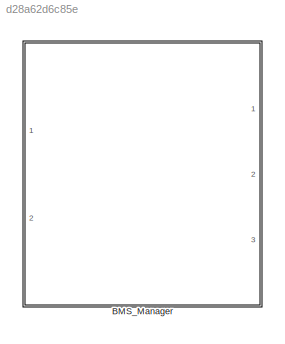
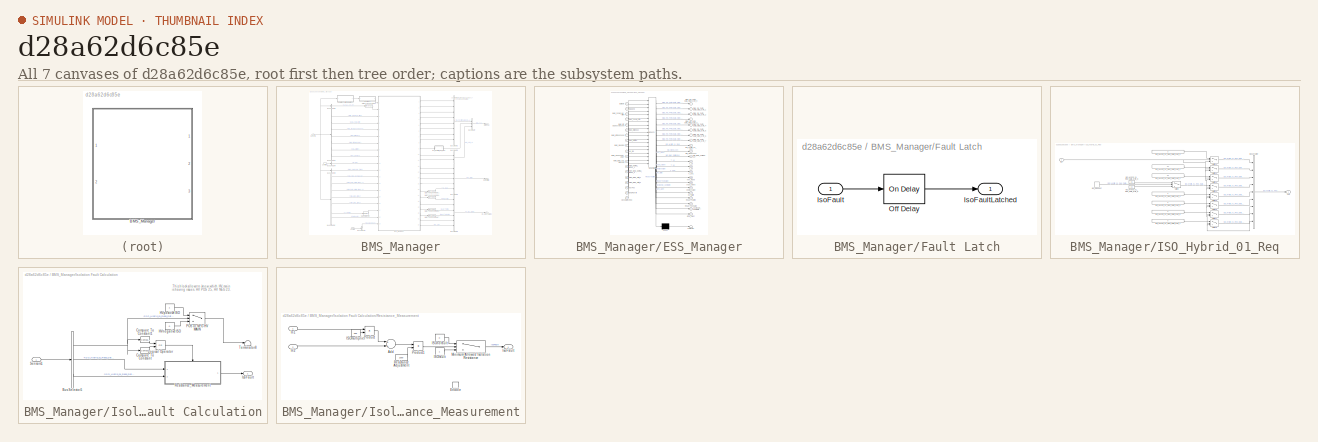
[diagram: thumbnail index - all 7 canvases of the model, root first then tree order]
MODEL slx_d28a62d6c85e
KIND library
CONFIG AbsTol = auto
CONFIG EnableMultiTasking = off
CONFIG FixedStep = auto
CONFIG MaxStep = auto
CONFIG MinStep = auto
CONFIG RelTol = 1e-3
CONFIG SampleTimeConstraint = Unconstrained
CONFIG Solver = VariableStepAuto
CONFIG SolverName = VariableStepAuto
CONFIG StartTime = 0.0
CONFIG StopTime = 10.0
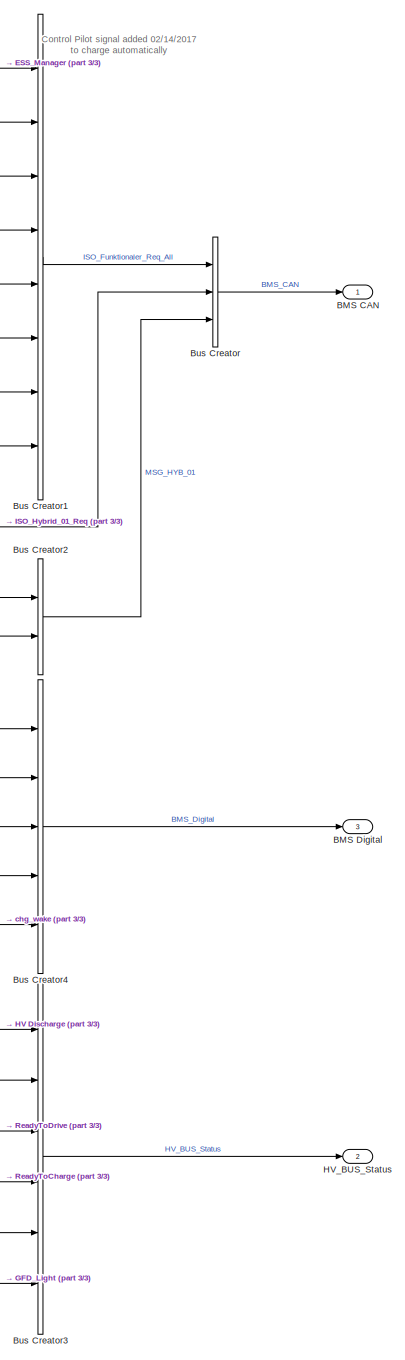
[diagram: BMS_Manager - part 1/3, right side, full height]
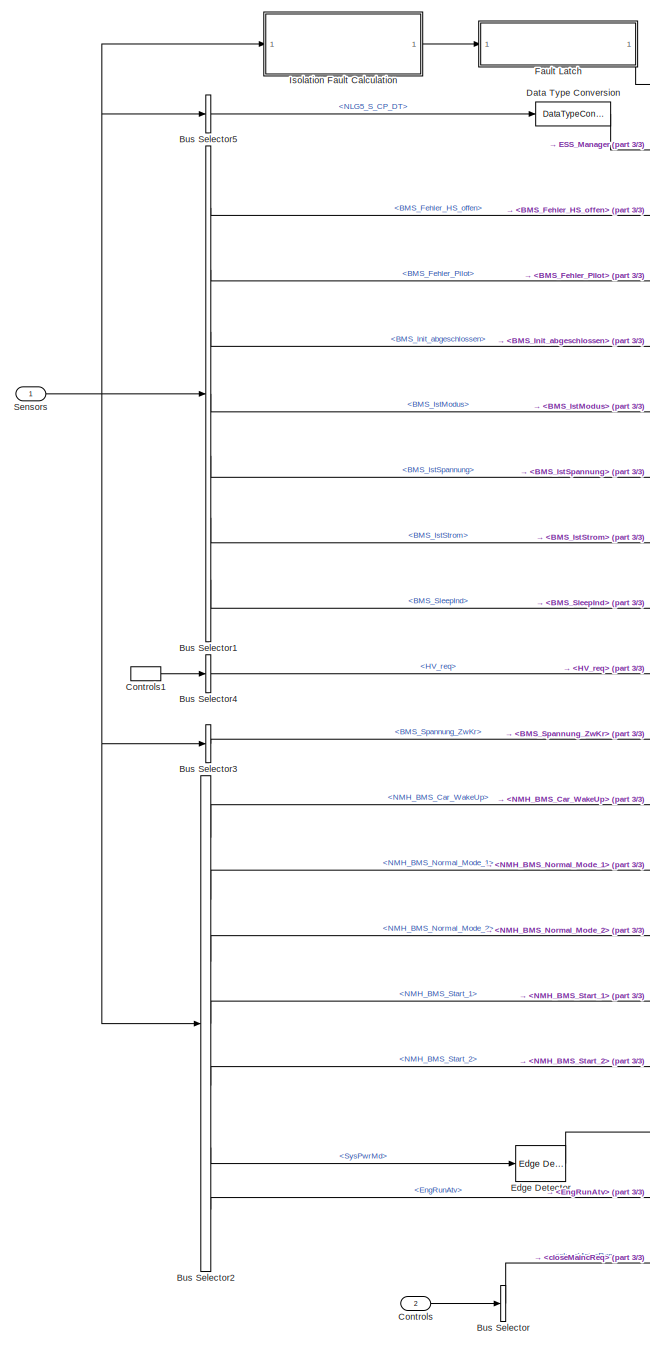
[diagram: BMS_Manager - part 2/3, left side, full height]
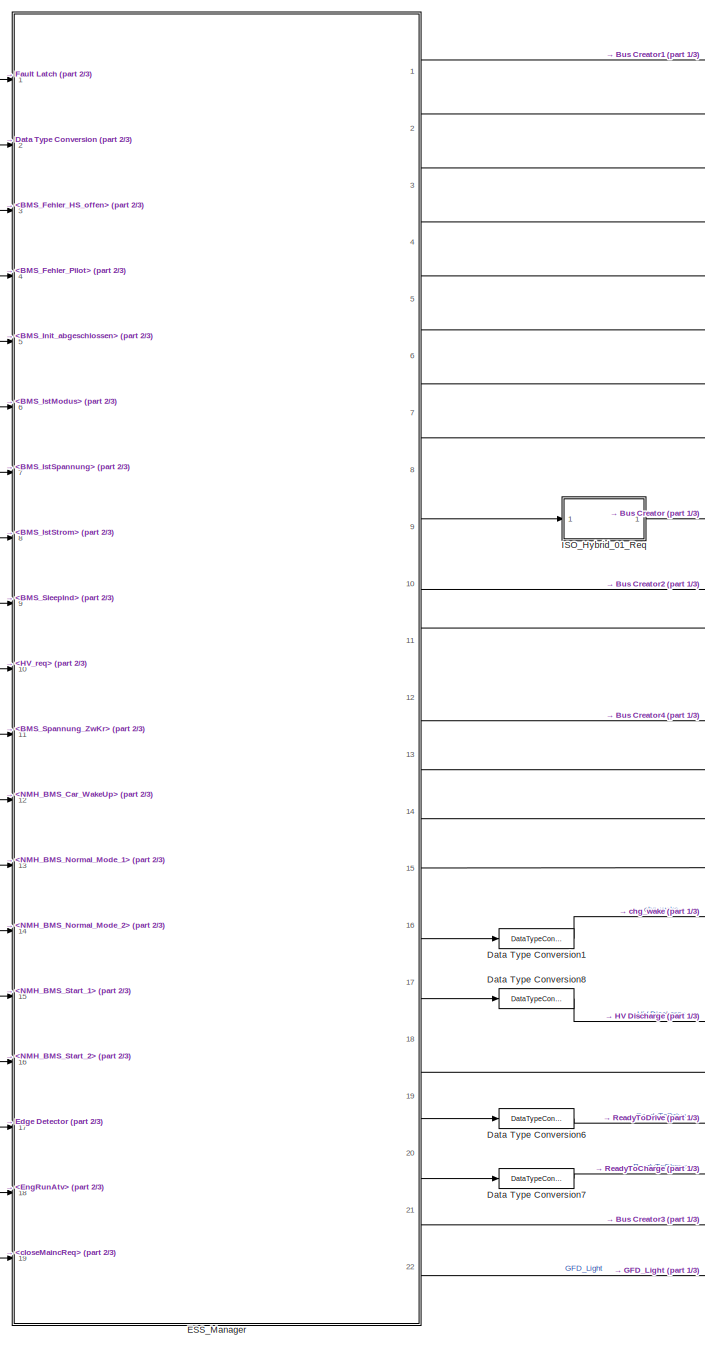
[diagram: BMS_Manager - part 3/3, center side, full height]
BLOCK [SubSystem] BMS_Manager
  Ports = [2, 3]
  RequestExecContextInheritance = off
  Variant = off
BLOCK [Outport] BMS_Manager/BMS CAN
  IconDisplay = Port number
BLOCK [Outport] BMS_Manager/BMS Digital
  IconDisplay = Port number
  Port = 3
BLOCK [BusCreator] BMS_Manager/Bus Creator
  DisplayOption = bar
  InheritFromInputs = on
  Inputs = 3
  Ports = [3, 1]
BLOCK [BusCreator] BMS_Manager/Bus Creator1
  DisplayOption = bar
  InheritFromInputs = on
  Inputs = 8
  Ports = [8, 1]
BLOCK [BusCreator] BMS_Manager/Bus Creator2
  DisplayOption = bar
  InheritFromInputs = on
  Inputs = 2
  Ports = [2, 1]
BLOCK [BusCreator] BMS_Manager/Bus Creator3
  DisplayOption = bar
  InheritFromInputs = on
  Inputs = 6
  Ports = [6, 1]
BLOCK [BusCreator] BMS_Manager/Bus Creator4
  DisplayOption = bar
  InheritFromInputs = on
  Inputs = 5
  Ports = [5, 1]
BLOCK [BusSelector] BMS_Manager/Bus Selector
  OutputAsBus = off
  OutputSignals = closeMaincReq
  Ports = [1, 1]
BLOCK [BusSelector] BMS_Manager/Bus Selector1
  OutputAsBus = off
  OutputSignals = from_CAN.fromHV_CAN.from_BMSHybrid.BMS_HYB_02.BMS_Fehler_HS_offen,from_CAN.fromHV_CAN.from_BMSHybrid.BMS_HYB_02.BMS_Fehler_Pilot,from_CAN.fromHV_CAN.from_BMSHybrid.BMS_HYB_02.BMS_Init_abgeschlossen,from_CAN.fromHV_CAN.from_BMSHybrid.BMS_HYB_02.BMS_IstModus,from_CAN.fromHV_CAN.from_BMSHybrid.BMS_HYB_02.BMS_IstSpannung,from_CAN.fromHV_CAN.from_BMSHybrid.BMS_HYB_02.BMS_IstStrom,from_CAN.fromHV_CAN.fr...<+36ch>
  Ports = [1, 7]
BLOCK [BusSelector] BMS_Manager/Bus Selector2
  OutputAsBus = off
  OutputSignals = from_CAN.fromEBCAN.from_BMSAntrieb.NMH_BMS.NMH_BMS_Car_WakeUp,from_CAN.fromEBCAN.from_BMSAntrieb.NMH_BMS.NMH_BMS_Normal_Mode_1,from_CAN.fromEBCAN.from_BMSAntrieb.NMH_BMS.NMH_BMS_Normal_Mode_2,from_CAN.fromEBCAN.from_BMSAntrieb.NMH_BMS.NMH_BMS_Start_1,from_CAN.fromEBCAN.from_BMSAntrieb.NMH_BMS.NMH_BMS_Start_2,from_CAN.fromVEH_CAN.from_BCM.SysPwrMd,from_CAN.fromEBCAN.from_ECM.EngRunAtv
  Ports = [1, 7]
BLOCK [BusSelector] BMS_Manager/Bus Selector3
  OutputAsBus = off
  OutputSignals = from_CAN.fromHV_CAN.from_BMSHybrid.BMS_Spannung_ZwKr
  Ports = [1, 1]
BLOCK [BusSelector] BMS_Manager/Bus Selector4
  OutputAsBus = off
  OutputSignals = HV_req
  Ports = [1, 1]
BLOCK [BusSelector] BMS_Manager/Bus Selector5
  OutputAsBus = off
  OutputSignals = from_CAN.fromHV_CAN.from_OBC.NLG5_ST.NLG5_S_CP_DT
  Ports = [1, 1]
BLOCK [Inport] BMS_Manager/Controls
  IconDisplay = Port number
  Port = 2
BLOCK [InportShadow] BMS_Manager/Controls1
  IconDisplay = Port number
  Port = 2
BLOCK [DataTypeConversion] BMS_Manager/Data Type Conversion
  OutDataTypeStr = boolean
  RndMeth = Floor
  SaturateOnIntegerOverflow = off
BLOCK [DataTypeConversion] BMS_Manager/Data Type Conversion1
  OutDataTypeStr = boolean
  RndMeth = Floor
  SaturateOnIntegerOverflow = off
BLOCK [DataTypeConversion] BMS_Manager/Data Type Conversion6
  OutDataTypeStr = boolean
  RndMeth = Floor
  SaturateOnIntegerOverflow = off
BLOCK [DataTypeConversion] BMS_Manager/Data Type Conversion7
  OutDataTypeStr = boolean
  RndMeth = Floor
  SaturateOnIntegerOverflow = off
BLOCK [DataTypeConversion] BMS_Manager/Data Type Conversion8
  OutDataTypeStr = boolean
  RndMeth = Floor
  SaturateOnIntegerOverflow = off
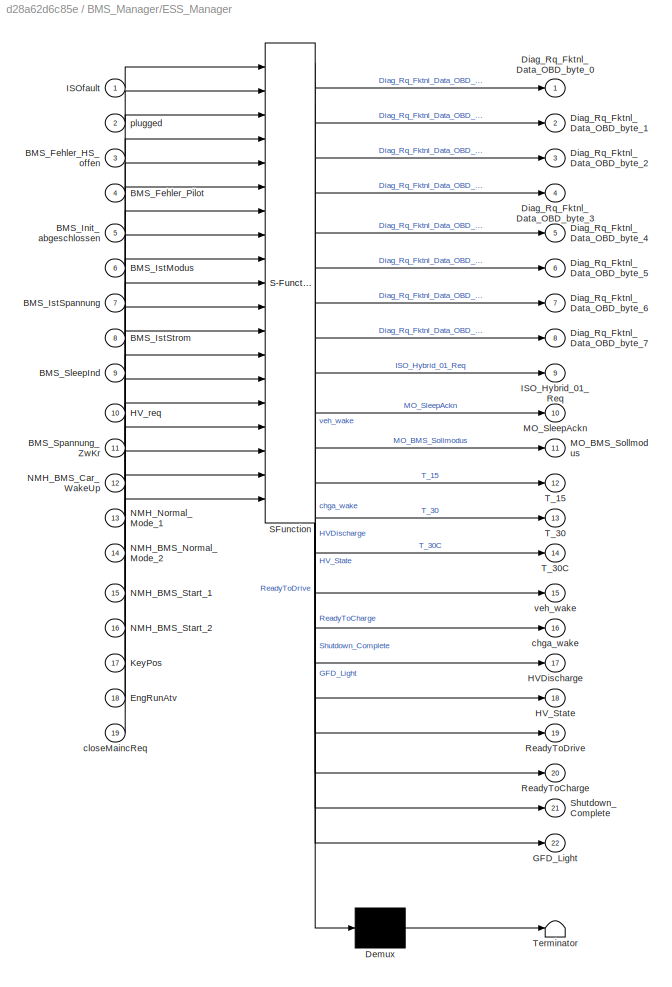
BLOCK [SubSystem] BMS_Manager/ESS_Manager
  ErrorFcn = Stateflow.Translate.translate
  PermitHierarchicalResolution = ExplicitOnly
  Ports = [19, 22]
  RequestExecContextInheritance = off
  SFBlockType = Chart
  ShowPortLabels = SignalName
  TreatAsAtomicUnit = on
  Variant = off
BLOCK [Demux] BMS_Manager/ESS_Manager/ Demux 
  Outputs = 1
  Ports = [1, 1]
BLOCK [S-Function] BMS_Manager/ESS_Manager/ SFunction 
  EnableBusSupport = off
  FunctionName = sf_sfun
  PortCounts = [19 23]
  Ports = [19, 23]
  SFcnIsStateOwnerBlock = off
  SFunctionDeploymentMode = off
  Tag = Stateflow S-Function lib_BMSManager 36
BLOCK [Terminator] BMS_Manager/ESS_Manager/ Terminator 
BLOCK [Inport] BMS_Manager/ESS_Manager/BMS_Fehler_HS_offen
  IconDisplay = Port number
  Port = 3
BLOCK [Inport] BMS_Manager/ESS_Manager/BMS_Fehler_Pilot
  IconDisplay = Port number
  Port = 4
BLOCK [Inport] BMS_Manager/ESS_Manager/BMS_Init_abgeschlossen
  IconDisplay = Port number
  Port = 5
BLOCK [Inport] BMS_Manager/ESS_Manager/BMS_IstModus
  IconDisplay = Port number
  Port = 6
BLOCK [Inport] BMS_Manager/ESS_Manager/BMS_IstSpannung
  IconDisplay = Port number
  Port = 7
BLOCK [Inport] BMS_Manager/ESS_Manager/BMS_IstStrom
  IconDisplay = Port number
  Port = 8
BLOCK [Inport] BMS_Manager/ESS_Manager/BMS_SleepInd
  IconDisplay = Port number
  Port = 9
BLOCK [Inport] BMS_Manager/ESS_Manager/BMS_Spannung_ZwKr
  IconDisplay = Port number
  Port = 11
BLOCK [Outport] BMS_Manager/ESS_Manager/Diag_Rq_Fktnl_Data_OBD_byte_0
  IconDisplay = Port number
BLOCK [Outport] BMS_Manager/ESS_Manager/Diag_Rq_Fktnl_Data_OBD_byte_1
  IconDisplay = Port number
  Port = 2
BLOCK [Outport] BMS_Manager/ESS_Manager/Diag_Rq_Fktnl_Data_OBD_byte_2
  IconDisplay = Port number
  Port = 3
BLOCK [Outport] BMS_Manager/ESS_Manager/Diag_Rq_Fktnl_Data_OBD_byte_3
  IconDisplay = Port number
  Port = 4
BLOCK [Outport] BMS_Manager/ESS_Manager/Diag_Rq_Fktnl_Data_OBD_byte_4
  IconDisplay = Port number
  Port = 5
BLOCK [Outport] BMS_Manager/ESS_Manager/Diag_Rq_Fktnl_Data_OBD_byte_5
  IconDisplay = Port number
  Port = 6
BLOCK [Outport] BMS_Manager/ESS_Manager/Diag_Rq_Fktnl_Data_OBD_byte_6
  IconDisplay = Port number
  Port = 7
BLOCK [Outport] BMS_Manager/ESS_Manager/Diag_Rq_Fktnl_Data_OBD_byte_7
  IconDisplay = Port number
  Port = 8
BLOCK [Inport] BMS_Manager/ESS_Manager/EngRunAtv
  IconDisplay = Port number
  Port = 18
BLOCK [Outport] BMS_Manager/ESS_Manager/GFD_Light
  IconDisplay = Port number
  Port = 22
BLOCK [Outport] BMS_Manager/ESS_Manager/HVDischarge
  IconDisplay = Port number
  Port = 17
BLOCK [Outport] BMS_Manager/ESS_Manager/HV_State
  IconDisplay = Port number
  Port = 18
BLOCK [Inport] BMS_Manager/ESS_Manager/HV_req
  IconDisplay = Port number
  Port = 10
BLOCK [Outport] BMS_Manager/ESS_Manager/ISO_Hybrid_01_Req
  IconDisplay = Port number
  Port = 9
BLOCK [Inport] BMS_Manager/ESS_Manager/ISOfault
  IconDisplay = Port number
BLOCK [Inport] BMS_Manager/ESS_Manager/KeyPos
  IconDisplay = Port number
  Port = 17
BLOCK [Outport] BMS_Manager/ESS_Manager/MO_BMS_Sollmodus
  IconDisplay = Port number
  Port = 11
BLOCK [Outport] BMS_Manager/ESS_Manager/MO_SleepAckn
  IconDisplay = Port number
  Port = 10
BLOCK [Inport] BMS_Manager/ESS_Manager/NMH_BMS_Car_WakeUp
  IconDisplay = Port number
  Port = 12
BLOCK [Inport] BMS_Manager/ESS_Manager/NMH_BMS_Normal_Mode_2
  IconDisplay = Port number
  Port = 14
BLOCK [Inport] BMS_Manager/ESS_Manager/NMH_BMS_Start_1
  IconDisplay = Port number
  Port = 15
BLOCK [Inport] BMS_Manager/ESS_Manager/NMH_BMS_Start_2
  IconDisplay = Port number
  Port = 16
BLOCK [Inport] BMS_Manager/ESS_Manager/NMH_Normal_Mode_1
  IconDisplay = Port number
  Port = 13
BLOCK [Outport] BMS_Manager/ESS_Manager/ReadyToCharge
  IconDisplay = Port number
  Port = 20
BLOCK [Outport] BMS_Manager/ESS_Manager/ReadyToDrive
  IconDisplay = Port number
  Port = 19
BLOCK [Outport] BMS_Manager/ESS_Manager/Shutdown_Complete
  IconDisplay = Port number
  Port = 21
BLOCK [Outport] BMS_Manager/ESS_Manager/T_15
  IconDisplay = Port number
  Port = 12
BLOCK [Outport] BMS_Manager/ESS_Manager/T_30
  IconDisplay = Port number
  Port = 13
BLOCK [Outport] BMS_Manager/ESS_Manager/T_30C
  IconDisplay = Port number
  Port = 14
BLOCK [Outport] BMS_Manager/ESS_Manager/chga_wake
  IconDisplay = Port number
  Port = 16
BLOCK [Inport] BMS_Manager/ESS_Manager/closeMaincReq
  IconDisplay = Port number
  Port = 19
BLOCK [Inport] BMS_Manager/ESS_Manager/plugged
  IconDisplay = Port number
  Port = 2
BLOCK [Outport] BMS_Manager/ESS_Manager/veh_wake
  IconDisplay = Port number
  Port = 15
BLOCK [Reference] BMS_Manager/Edge Detector  REF=powerlib_meascontrol/Logic/Edge Detector
  Ports = [1, 1]
  SourceBlock = powerlib_meascontrol/Logic/Edge Detector
  SourceProductBaseCode = PS
  SourceProductName = Simscape Power Systems
  SourceType = Edge Detector
BLOCK [SubSystem] BMS_Manager/Fault Latch
  Ports = [1, 1]
  RequestExecContextInheritance = off
  Variant = off
BLOCK [Inport] BMS_Manager/Fault Latch/IsoFault
  IconDisplay = Port number
BLOCK [Outport] BMS_Manager/Fault Latch/IsoFaultLatched
  IconDisplay = Port number
BLOCK [Reference] BMS_Manager/Fault Latch/Off Delay  REF=powerlib_meascontrol/Logic/On Delay
  Ports = [1, 1]
  SourceBlock = powerlib_meascontrol/Logic/On Delay
  SourceProductBaseCode = PS
  SourceProductName = Simscape Power Systems
  SourceType = On/Off Delay
BLOCK [Outport] BMS_Manager/HV_BUS_Status
  IconDisplay = Port number
  Port = 2
BLOCK [SubSystem] BMS_Manager/ISO_Hybrid_01_Req
  Ports = [1, 1]
  RequestExecContextInheritance = off
  Variant = off
BLOCK [BusCreator] BMS_Manager/ISO_Hybrid_01_Req/Bus Creator
  DisplayOption = bar
  InheritFromInputs = on
  Inputs = 9
  Ports = [9, 1]
BLOCK [Constant] BMS_Manager/ISO_Hybrid_01_Req/ISO_Hybrid_01_Req_Data_byte_0
  Value = 3
BLOCK [Constant] BMS_Manager/ISO_Hybrid_01_Req/ISO_Hybrid_01_Req_Data_byte_1
  Value = 34
BLOCK [Constant] BMS_Manager/ISO_Hybrid_01_Req/ISO_Hybrid_01_Req_Data_byte_2
  Value = 30
BLOCK [Constant] BMS_Manager/ISO_Hybrid_01_Req/ISO_Hybrid_01_Req_Data_byte_3
  Value = 25
BLOCK [Constant] BMS_Manager/ISO_Hybrid_01_Req/ISO_Hybrid_01_Req_Data_byte_4
  Value = 0
BLOCK [Constant] BMS_Manager/ISO_Hybrid_01_Req/ISO_Hybrid_01_Req_Data_byte_5
  Value = 0
BLOCK [Constant] BMS_Manager/ISO_Hybrid_01_Req/ISO_Hybrid_01_Req_Data_byte_6
  Value = 0
BLOCK [Constant] BMS_Manager/ISO_Hybrid_01_Req/ISO_Hybrid_01_Req_Data_byte_7
  Value = 0
BLOCK [Constant] BMS_Manager/ISO_Hybrid_01_Req/ISO_Hybrid_01_Req_Data_byte_8
  Value = 23
BLOCK [DiscretePulseGenerator] BMS_Manager/ISO_Hybrid_01_Req/ISO_Request
  Period = 0.5
  Ports = [0, 1]
  PulseType = Time based
  PulseWidth = 50
  SampleTime = -1
BLOCK [Inport] BMS_Manager/ISO_Hybrid_01_Req/In1
  IconDisplay = Port number
BLOCK [Outport] BMS_Manager/ISO_Hybrid_01_Req/Out1
  IconDisplay = Port number
BLOCK [Switch] BMS_Manager/ISO_Hybrid_01_Req/Switch
  Criteria = u2 > Threshold
  InputSameDT = off
  SaturateOnIntegerOverflow = off
BLOCK [Switch] BMS_Manager/ISO_Hybrid_01_Req/Switch1
  Criteria = u2 > Threshold
  InputSameDT = off
  SaturateOnIntegerOverflow = off
BLOCK [Switch] BMS_Manager/ISO_Hybrid_01_Req/Switch2
  Criteria = u2 > Threshold
  InputSameDT = off
  SaturateOnIntegerOverflow = off
BLOCK [Switch] BMS_Manager/ISO_Hybrid_01_Req/Switch3
  Criteria = u2 > Threshold
  InputSameDT = off
  SaturateOnIntegerOverflow = off
BLOCK [Switch] BMS_Manager/ISO_Hybrid_01_Req/Switch4
  Criteria = u2 > Threshold
  InputSameDT = off
  SaturateOnIntegerOverflow = off
BLOCK [Switch] BMS_Manager/ISO_Hybrid_01_Req/Switch5
  Criteria = u2 > Threshold
  InputSameDT = off
  SaturateOnIntegerOverflow = off
BLOCK [Switch] BMS_Manager/ISO_Hybrid_01_Req/Switch6
  Criteria = u2 > Threshold
  InputSameDT = off
  SaturateOnIntegerOverflow = off
BLOCK [Switch] BMS_Manager/ISO_Hybrid_01_Req/Switch7
  Criteria = u2 > Threshold
  InputSameDT = off
  SaturateOnIntegerOverflow = off
BLOCK [Switch] BMS_Manager/ISO_Hybrid_01_Req/Switch8
  Criteria = u2 > Threshold
  InputSameDT = off
  SaturateOnIntegerOverflow = off
BLOCK [SubSystem] BMS_Manager/Isolation Fault Calculation
  Ports = [1, 1]
  RequestExecContextInheritance = off
  Variant = off
BLOCK [BusSelector] BMS_Manager/Isolation Fault Calculation/Bus Selector5
  OutputAsBus = off
  OutputSignals = from_CAN.fromEBCAN.from_BMSAntrieb.ISO_Hybrid_01_Resp_Data.ISO_Hybrid_01_Resp_Data_byte_3,from_CAN.fromEBCAN.from_BMSAntrieb.ISO_Hybrid_01_Resp_Data.ISO_Hybrid_01_Resp_Data_byte_4,from_CAN.fromEBCAN.from_BMSAntrieb.ISO_Hybrid_01_Resp_Data.ISO_Hybrid_01_Resp_Data_byte_5
  Ports = [1, 3]
BLOCK [Reference] BMS_Manager/Isolation Fault Calculation/Compare To Constant  REF=simulink/Logic and Bit
Operations/Compare
To Constant
  Ports = [1, 1]
  SourceBlock = simulink/Logic and Bit\nOperations/Compare\nTo Constant
  SourceProductBaseCode = SL
  SourceProductName = Simulink
  SourceType = Compare To Constant
BLOCK [Reference] BMS_Manager/Isolation Fault Calculation/Compare To Constant1  REF=simulink/Logic and Bit
Operations/Compare
To Constant
  Ports = [1, 1]
  SourceBlock = simulink/Logic and Bit\nOperations/Compare\nTo Constant
  SourceProductBaseCode = SL
  SourceProductName = Simulink
  SourceType = Compare To Constant
BLOCK [Constant] BMS_Manager/Isolation Fault Calculation/HVnegativeISO
  Value = 0
BLOCK [Constant] BMS_Manager/Isolation Fault Calculation/HVpositiveISO
BLOCK [Outport] BMS_Manager/Isolation Fault Calculation/IsoFault
  IconDisplay = Port number
BLOCK [Logic] BMS_Manager/Isolation Fault Calculation/Logical Operator
  AllPortsSameDT = off
  Operator = OR
  OutDataTypeStr = boolean
  Ports = [2, 1]
BLOCK [Switch] BMS_Manager/Isolation Fault Calculation/POS or NEG HV MAIN
  Criteria = u2 > Threshold
  InputSameDT = off
  SaturateOnIntegerOverflow = off
  Threshold = 24
BLOCK [SubSystem] BMS_Manager/Isolation Fault Calculation/Resistance_Measurement
  Ports = [2, 1, 1]
  RequestExecContextInheritance = off
  Variant = off
BLOCK [Sum] BMS_Manager/Isolation Fault Calculation/Resistance_Measurement/Add
  InputSameDT = off
  OutDataTypeStr = Inherit: Inherit via internal rule
  Ports = [2, 1]
  SaturateOnIntegerOverflow = off
BLOCK [EnablePort] BMS_Manager/Isolation Fault Calculation/Resistance_Measurement/Enable
  Ports = []
BLOCK [Constant] BMS_Manager/Isolation Fault Calculation/Resistance_Measurement/ISOfault
BLOCK [Constant] BMS_Manager/Isolation Fault Calculation/Resistance_Measurement/ISOmultiplier
  Value = 256
BLOCK [Constant] BMS_Manager/Isolation Fault Calculation/Resistance_Measurement/ISOnofault
  Value = 0
BLOCK [Inport] BMS_Manager/Isolation Fault Calculation/Resistance_Measurement/In1
  IconDisplay = Port number
BLOCK [Inport] BMS_Manager/Isolation Fault Calculation/Resistance_Measurement/In2
  IconDisplay = Port number
  Port = 2
BLOCK [Outport] BMS_Manager/Isolation Fault Calculation/Resistance_Measurement/IsoFault
  IconDisplay = Port number
BLOCK [Switch] BMS_Manager/Isolation Fault Calculation/Resistance_Measurement/Minimum Allowed Isolation Resistance
  Criteria = u2 > Threshold
  InputSameDT = off
  SaturateOnIntegerOverflow = off
  Threshold = 500000
BLOCK [Product] BMS_Manager/Isolation Fault Calculation/Resistance_Measurement/Product
  InputSameDT = off
  OutDataTypeStr = Inherit: Inherit via internal rule
  Ports = [2, 1]
  RndMeth = Floor
  SaturateOnIntegerOverflow = off
BLOCK [Product] BMS_Manager/Isolation Fault Calculation/Resistance_Measurement/Product1
  InputSameDT = off
  OutDataTypeStr = Inherit: Inherit via internal rule
  Ports = [2, 1]
  RndMeth = Floor
  SaturateOnIntegerOverflow = off
BLOCK [Constant] BMS_Manager/Isolation Fault Calculation/Resistance_Measurement/Resistance Adjustment
  Value = 1000
BLOCK [Inport] BMS_Manager/Isolation Fault Calculation/Sensors1
  IconDisplay = Port number
BLOCK [Terminator] BMS_Manager/Isolation Fault Calculation/Terminator8
BLOCK [Inport] BMS_Manager/Sensors
  IconDisplay = Port number
ANNOTATION BMS_Manager: Control Pilot signal added 02/14/2017 to charge automatically
ANNOTATION BMS_Manager/Isolation Fault Calculation: This block allows to know which HV main is having issues. HV POS 25, HV NEG 23.
LINE BMS_Manager/Bus Creator1:1 -> BMS_Manager/Bus Creator:1
LINE BMS_Manager/Bus Creator2:1 -> BMS_Manager/Bus Creator:3
LINE BMS_Manager/Bus Creator3:1 -> BMS_Manager/HV_BUS_Status:1
LINE BMS_Manager/Bus Creator4:1 -> BMS_Manager/BMS Digital:1
LINE BMS_Manager/Bus Creator:1 -> BMS_Manager/BMS CAN:1
LINE BMS_Manager/Bus Selector1:1 -> BMS_Manager/ESS_Manager:3
LINE BMS_Manager/Bus Selector1:2 -> BMS_Manager/ESS_Manager:4
LINE BMS_Manager/Bus Selector1:3 -> BMS_Manager/ESS_Manager:5
LINE BMS_Manager/Bus Selector1:4 -> BMS_Manager/ESS_Manager:6
LINE BMS_Manager/Bus Selector1:5 -> BMS_Manager/ESS_Manager:7
LINE BMS_Manager/Bus Selector1:6 -> BMS_Manager/ESS_Manager:8
LINE BMS_Manager/Bus Selector1:7 -> BMS_Manager/ESS_Manager:9
LINE BMS_Manager/Bus Selector2:1 -> BMS_Manager/ESS_Manager:12
LINE BMS_Manager/Bus Selector2:2 -> BMS_Manager/ESS_Manager:13
LINE BMS_Manager/Bus Selector2:3 -> BMS_Manager/ESS_Manager:14
LINE BMS_Manager/Bus Selector2:4 -> BMS_Manager/ESS_Manager:15
LINE BMS_Manager/Bus Selector2:5 -> BMS_Manager/ESS_Manager:16
LINE BMS_Manager/Bus Selector2:6 -> BMS_Manager/Edge Detector:1
LINE BMS_Manager/Bus Selector2:7 -> BMS_Manager/ESS_Manager:18
LINE BMS_Manager/Bus Selector3:1 -> BMS_Manager/ESS_Manager:11
LINE BMS_Manager/Bus Selector4:1 -> BMS_Manager/ESS_Manager:10
LINE BMS_Manager/Bus Selector5:1 -> BMS_Manager/Data Type Conversion:1
LINE BMS_Manager/Bus Selector:1 -> BMS_Manager/ESS_Manager:19
LINE BMS_Manager/Controls1:1 -> BMS_Manager/Bus Selector4:1
LINE BMS_Manager/Controls:1 -> BMS_Manager/Bus Selector:1
LINE BMS_Manager/Data Type Conversion1:1 -> BMS_Manager/Bus Creator4:5
LINE BMS_Manager/Data Type Conversion6:1 -> BMS_Manager/Bus Creator3:3
LINE BMS_Manager/Data Type Conversion7:1 -> BMS_Manager/Bus Creator3:4
LINE BMS_Manager/Data Type Conversion8:1 -> BMS_Manager/Bus Creator3:1
LINE BMS_Manager/Data Type Conversion:1 -> BMS_Manager/ESS_Manager:2
LINE BMS_Manager/ESS_Manager:1 -> BMS_Manager/Bus Creator1:1
LINE BMS_Manager/ESS_Manager:10 -> BMS_Manager/Bus Creator2:1
LINE BMS_Manager/ESS_Manager:11 -> BMS_Manager/Bus Creator2:2
LINE BMS_Manager/ESS_Manager:12 -> BMS_Manager/Bus Creator4:1
LINE BMS_Manager/ESS_Manager:13 -> BMS_Manager/Bus Creator4:2
LINE BMS_Manager/ESS_Manager:14 -> BMS_Manager/Bus Creator4:3
LINE BMS_Manager/ESS_Manager:15 -> BMS_Manager/Bus Creator4:4
LINE BMS_Manager/ESS_Manager:16 -> BMS_Manager/Data Type Conversion1:1
LINE BMS_Manager/ESS_Manager:17 -> BMS_Manager/Data Type Conversion8:1
LINE BMS_Manager/ESS_Manager:18 -> BMS_Manager/Bus Creator3:2
LINE BMS_Manager/ESS_Manager:19 -> BMS_Manager/Data Type Conversion6:1
LINE BMS_Manager/ESS_Manager:2 -> BMS_Manager/Bus Creator1:2
LINE BMS_Manager/ESS_Manager:20 -> BMS_Manager/Data Type Conversion7:1
LINE BMS_Manager/ESS_Manager:21 -> BMS_Manager/Bus Creator3:5
LINE BMS_Manager/ESS_Manager:22 -> BMS_Manager/Bus Creator3:6
LINE BMS_Manager/ESS_Manager:3 -> BMS_Manager/Bus Creator1:3
LINE BMS_Manager/ESS_Manager:4 -> BMS_Manager/Bus Creator1:4
LINE BMS_Manager/ESS_Manager:5 -> BMS_Manager/Bus Creator1:5
LINE BMS_Manager/ESS_Manager:6 -> BMS_Manager/Bus Creator1:6
LINE BMS_Manager/ESS_Manager:7 -> BMS_Manager/Bus Creator1:7
LINE BMS_Manager/ESS_Manager:8 -> BMS_Manager/Bus Creator1:8
LINE BMS_Manager/ESS_Manager:9 -> BMS_Manager/ISO_Hybrid_01_Req:1
LINE BMS_Manager/Edge Detector:1 -> BMS_Manager/ESS_Manager:17
LINE BMS_Manager/Fault Latch/IsoFault:1 -> BMS_Manager/Fault Latch/Off Delay:1
LINE BMS_Manager/Fault Latch/Off Delay:1 -> BMS_Manager/Fault Latch/IsoFaultLatched:1
LINE BMS_Manager/Fault Latch:1 -> BMS_Manager/ESS_Manager:1
LINE BMS_Manager/ISO_Hybrid_01_Req/Bus Creator:1 -> BMS_Manager/ISO_Hybrid_01_Req/Out1:1
LINE BMS_Manager/ISO_Hybrid_01_Req/ISO_Hybrid_01_Req_Data_byte_0:1 -> BMS_Manager/ISO_Hybrid_01_Req/Switch1:1
LINE BMS_Manager/ISO_Hybrid_01_Req/ISO_Hybrid_01_Req_Data_byte_1:1 -> BMS_Manager/ISO_Hybrid_01_Req/Switch2:1
LINE BMS_Manager/ISO_Hybrid_01_Req/ISO_Hybrid_01_Req_Data_byte_2:1 -> BMS_Manager/ISO_Hybrid_01_Req/Switch3:1
LINE BMS_Manager/ISO_Hybrid_01_Req/ISO_Hybrid_01_Req_Data_byte_3:1 -> BMS_Manager/ISO_Hybrid_01_Req/Switch:1
LINE BMS_Manager/ISO_Hybrid_01_Req/ISO_Hybrid_01_Req_Data_byte_4:1 -> BMS_Manager/ISO_Hybrid_01_Req/Switch5:1
LINE BMS_Manager/ISO_Hybrid_01_Req/ISO_Hybrid_01_Req_Data_byte_5:1 -> BMS_Manager/ISO_Hybrid_01_Req/Switch6:1
LINE BMS_Manager/ISO_Hybrid_01_Req/ISO_Hybrid_01_Req_Data_byte_6:1 -> BMS_Manager/ISO_Hybrid_01_Req/Switch7:1
LINE BMS_Manager/ISO_Hybrid_01_Req/ISO_Hybrid_01_Req_Data_byte_7:1 -> BMS_Manager/ISO_Hybrid_01_Req/Switch8:1
LINE BMS_Manager/ISO_Hybrid_01_Req/ISO_Hybrid_01_Req_Data_byte_8:1 -> BMS_Manager/ISO_Hybrid_01_Req/Switch:3
LINE BMS_Manager/ISO_Hybrid_01_Req/ISO_Request:1 -> BMS_Manager/ISO_Hybrid_01_Req/Switch:2
NET BMS_Manager/ISO_Hybrid_01_Req/In1:1 -> BMS_Manager/ISO_Hybrid_01_Req/Bus Creator:9, BMS_Manager/ISO_Hybrid_01_Req/Switch1:2, BMS_Manager/ISO_Hybrid_01_Req/Switch1:3, BMS_Manager/ISO_Hybrid_01_Req/Switch2:2, BMS_Manager/ISO_Hybrid_01_Req/Switch2:3, BMS_Manager/ISO_Hybrid_01_Req/Switch3:2, BMS_Manager/ISO_Hybrid_01_Req/Switch3:3, BMS_Manager/ISO_Hybrid_01_Req/Switch4:2, BMS_Manager/ISO_Hybrid_01_Req/Switch4:3, BMS_Manager/ISO_Hybrid_01_Req/Switch5:2, BMS_Manager/ISO_Hybrid_01_Req/Switch5:3, BMS_Manager/ISO_Hybrid_01_Req/Switch6:2, BMS_Manager/ISO_Hybrid_01_Req/Switch6:3, BMS_Manager/ISO_Hybrid_01_Req/Switch7:2, BMS_Manager/ISO_Hybrid_01_Req/Switch7:3, BMS_Manager/ISO_Hybrid_01_Req/Switch8:2, BMS_Manager/ISO_Hybrid_01_Req/Switch8:3
LINE BMS_Manager/ISO_Hybrid_01_Req/Switch1:1 -> BMS_Manager/ISO_Hybrid_01_Req/Bus Creator:1
LINE BMS_Manager/ISO_Hybrid_01_Req/Switch2:1 -> BMS_Manager/ISO_Hybrid_01_Req/Bus Creator:2
LINE BMS_Manager/ISO_Hybrid_01_Req/Switch3:1 -> BMS_Manager/ISO_Hybrid_01_Req/Bus Creator:3
LINE BMS_Manager/ISO_Hybrid_01_Req/Switch4:1 -> BMS_Manager/ISO_Hybrid_01_Req/Bus Creator:4
LINE BMS_Manager/ISO_Hybrid_01_Req/Switch5:1 -> BMS_Manager/ISO_Hybrid_01_Req/Bus Creator:5
LINE BMS_Manager/ISO_Hybrid_01_Req/Switch6:1 -> BMS_Manager/ISO_Hybrid_01_Req/Bus Creator:6
LINE BMS_Manager/ISO_Hybrid_01_Req/Switch7:1 -> BMS_Manager/ISO_Hybrid_01_Req/Bus Creator:7
LINE BMS_Manager/ISO_Hybrid_01_Req/Switch8:1 -> BMS_Manager/ISO_Hybrid_01_Req/Bus Creator:8
LINE BMS_Manager/ISO_Hybrid_01_Req/Switch:1 -> BMS_Manager/ISO_Hybrid_01_Req/Switch4:1
LINE BMS_Manager/ISO_Hybrid_01_Req:1 -> BMS_Manager/Bus Creator:2
NET BMS_Manager/Isolation Fault Calculation/Bus Selector5:1 -> BMS_Manager/Isolation Fault Calculation/Compare To Constant1:1, BMS_Manager/Isolation Fault Calculation/Compare To Constant:1, BMS_Manager/Isolation Fault Calculation/POS or NEG HV MAIN:2
LINE BMS_Manager/Isolation Fault Calculation/Bus Selector5:2 -> BMS_Manager/Isolation Fault Calculation/Resistance_Measurement:1
LINE BMS_Manager/Isolation Fault Calculation/Bus Selector5:3 -> BMS_Manager/Isolation Fault Calculation/Resistance_Measurement:2
LINE BMS_Manager/Isolation Fault Calculation/Compare To Constant1:1 -> BMS_Manager/Isolation Fault Calculation/Logical Operator:1
LINE BMS_Manager/Isolation Fault Calculation/Compare To Constant:1 -> BMS_Manager/Isolation Fault Calculation/Logical Operator:2
LINE BMS_Manager/Isolation Fault Calculation/HVnegativeISO:1 -> BMS_Manager/Isolation Fault Calculation/POS or NEG HV MAIN:3
LINE BMS_Manager/Isolation Fault Calculation/HVpositiveISO:1 -> BMS_Manager/Isolation Fault Calculation/POS or NEG HV MAIN:1
LINE BMS_Manager/Isolation Fault Calculation/Logical Operator:1 -> BMS_Manager/Isolation Fault Calculation/Resistance_Measurement:enable
LINE BMS_Manager/Isolation Fault Calculation/POS or NEG HV MAIN:1 -> BMS_Manager/Isolation Fault Calculation/Terminator8:1
LINE BMS_Manager/Isolation Fault Calculation/Resistance_Measurement/Add:1 -> BMS_Manager/Isolation Fault Calculation/Resistance_Measurement/Product1:1
LINE BMS_Manager/Isolation Fault Calculation/Resistance_Measurement/ISOfault:1 -> BMS_Manager/Isolation Fault Calculation/Resistance_Measurement/Minimum Allowed Isolation Resistance:3
LINE BMS_Manager/Isolation Fault Calculation/Resistance_Measurement/ISOmultiplier:1 -> BMS_Manager/Isolation Fault Calculation/Resistance_Measurement/Product:2
LINE BMS_Manager/Isolation Fault Calculation/Resistance_Measurement/ISOnofault:1 -> BMS_Manager/Isolation Fault Calculation/Resistance_Measurement/Minimum Allowed Isolation Resistance:1
LINE BMS_Manager/Isolation Fault Calculation/Resistance_Measurement/In1:1 -> BMS_Manager/Isolation Fault Calculation/Resistance_Measurement/Product:1
LINE BMS_Manager/Isolation Fault Calculation/Resistance_Measurement/In2:1 -> BMS_Manager/Isolation Fault Calculation/Resistance_Measurement/Add:2
LINE BMS_Manager/Isolation Fault Calculation/Resistance_Measurement/Minimum Allowed Isolation Resistance:1 -> BMS_Manager/Isolation Fault Calculation/Resistance_Measurement/IsoFault:1
LINE BMS_Manager/Isolation Fault Calculation/Resistance_Measurement/Product1:1 -> BMS_Manager/Isolation Fault Calculation/Resistance_Measurement/Minimum Allowed Isolation Resistance:2
LINE BMS_Manager/Isolation Fault Calculation/Resistance_Measurement/Product:1 -> BMS_Manager/Isolation Fault Calculation/Resistance_Measurement/Add:1
LINE BMS_Manager/Isolation Fault Calculation/Resistance_Measurement/Resistance Adjustment:1 -> BMS_Manager/Isolation Fault Calculation/Resistance_Measurement/Product1:2
LINE BMS_Manager/Isolation Fault Calculation/Resistance_Measurement:1 -> BMS_Manager/Isolation Fault Calculation/IsoFault:1
LINE BMS_Manager/Isolation Fault Calculation/Sensors1:1 -> BMS_Manager/Isolation Fault Calculation/Bus Selector5:1
LINE BMS_Manager/Isolation Fault Calculation:1 -> BMS_Manager/Fault Latch:1
NET BMS_Manager/Sensors:1 -> BMS_Manager/Bus Selector1:1, BMS_Manager/Bus Selector2:1, BMS_Manager/Bus Selector3:1, BMS_Manager/Bus Selector5:1, BMS_Manager/Isolation Fault Calculation:1
note: NET lines group one-source signal fan-out (src -> all destinations, sorted); 1:1 wires keep LINE
CHART BMS_Manager/ESS_Manager states=29 transitions=35
  STATE_LABEL 'Fault_light_OFF\nentry: GFD_Light=0;'
  STATE_LABEL 'Ground_Fault\n\nentry:\n HV_State=-7;\n GFD_Light=1\n'
  STATE_LABEL 'Voltage_Fault\n\n\n'
  STATE_LABEL 'HVIL_Fault\n\nentry: MO_BMS_Sollmodus=0;\n HV_State=-8'
  STATE_LABEL 'HV_Startup'
  STATE_LABEL 'Drive_State\n\nentry:  HV_State=1;\n  T_15=1;\n  T_30=1;\n  HVDischarge=0;\n'
  STATE_LABEL 'Contactor\n\nentry:\n T_30C=1;\n'
  STATE_LABEL 'Clear_Faults\n\nentry:\n\t\tDiag_Rq_Fktnl_Data_OBD_byte_0 =1;\n\t\tDiag_Rq_Fktnl_Data_OBD_byte_1=4;\n\t\tDiag_Rq_Fktnl_Data_OBD_byte_2=0;\n\t\tDiag_Rq_Fktnl_Data_OBD_byte_3=0;\n\t\tDiag_Rq_Fktnl_Data_OBD_byte_4=0;\n\t\tDiag_Rq_Fktnl_Data_OBD_byte_5=0;\n\t\tDiag_Rq_Fktnl_Data_OBD_byte_6=0;\n\t\tDiag_Rq_Fktnl_Data_OBD_byte_7=0;\n\t\tHV_State=2;'
  STATE_LABEL 'Charge_Wake\nentry: chga_wake=1;\n HV_State=3;'
  STATE_LABEL 'Drive_Wake\nentry: veh_wake=1;\n HV_State=8;'
  STATE_LABEL 'BMS_Enable_Charge\nentry: MO_BMS_Sollmodus=0;\n % T_15=1;\n % T_30C=1;\n HV_State=4;\n'
  STATE_LABEL 'BMS_Enable_Drive\nentry: MO_BMS_Sollmodus=0;\n HV_State=9;\n'
  STATE_LABEL 'Power_Contactors_Drive\nen: MO_BMS_Sollmodus=0;\n HV_State=10;'
  STATE_LABEL 'Power_Contactors_Charge\nen: MO_BMS_Sollmodus=0;\n %T_30C=1;\n HV_State=5;'
  STATE_LABEL 'Close_Contactors_Drive\nentry:\nMO_BMS_Sollmodus=1;\nHV_State=11;\n'
  STATE_LABEL 'Close_Contactors_Charge\nentry:\nMO_BMS_Sollmodus=1;\nHV_State=6;'
  STATE_LABEL 'Time_delay'
  STATE_LABEL 'Ready_to_Charge\n\nentry: ReadyToCharge=1;\n ISO_Hybrid_01_Req = 1;\n HV_State=7;'
  STATE_LABEL 'Ready_to_Drive\n\nentry: ReadyToDrive=1;\n ISO_Hybrid_01_Req = 1;\n HV_State=12;'
  STATE_LABEL 'after(0.25,sec)'
  STATE_LABEL 'after(0.1,sec)'
  STATE_LABEL '[plugged]'
  STATE_LABEL '%after(0.1,sec)'
  STATE_LABEL '[BMS_Fehler_Pilot==0 ]'
  STATE_LABEL '[BMS_Fehler_Pilot==0 ]'
  STATE_LABEL '[BMS_Init_abgeschlossen]'
  STATE_LABEL '[BMS_Init_abgeschlossen]'
  STATE_LABEL '[closeMaincReq]'
  STATE_LABEL '[closeMaincReq]'
  STATE_LABEL '[BMS_Fehler_HS_offen==0&&(BMS_IstModus==4||BMS_IstModus==1)]'
  STATE_LABEL '[BMS_Fehler_HS_offen==0&&BMS_IstModus==1]'
  STATE_LABEL 'after(1,sec)'
  STATE_LABEL '[plugged]'
  STATE_LABEL '[plugged==0]'
  STATE_LABEL 'Drive_State\n\nentry:  HV_State=1;\n  T_15=1;\n  T_30=1;\n  HVDischarge=0;\n'
  STATE_LABEL 'Contactor\n\nentry:\n T_30C=1;\n'
  STATE_LABEL 'Clear_Faults\n\nentry:\n\t\tDiag_Rq_Fktnl_Data_OBD_byte_0 =1;\n\t\tDiag_Rq_Fktnl_Data_OBD_byte_1=4;\n\t\tDiag_Rq_Fktnl_Data_OBD_byte_2=0;\n\t\tDiag_Rq_Fktnl_Data_OBD_byte_3=0;\n\t\tDiag_Rq_Fktnl_Data_OBD_byte_4=0;\n\t\tDiag_Rq_Fktnl_Data_OBD_byte_5=0;\n\t\tDiag_Rq_Fktnl_Data_OBD_byte_6=0;\n\t\tDiag_Rq_Fktnl_Data_OBD_byte_7=0;\n\t\tHV_State=2;'
  STATE_LABEL 'Charge_Wake\nentry: chga_wake=1;\n HV_State=3;'
  STATE_LABEL 'Drive_Wake\nentry: veh_wake=1;\n HV_State=8;'
  STATE_LABEL 'BMS_Enable_Charge\nentry: MO_BMS_Sollmodus=0;\n % T_15=1;\n % T_30C=1;\n HV_State=4;\n'
